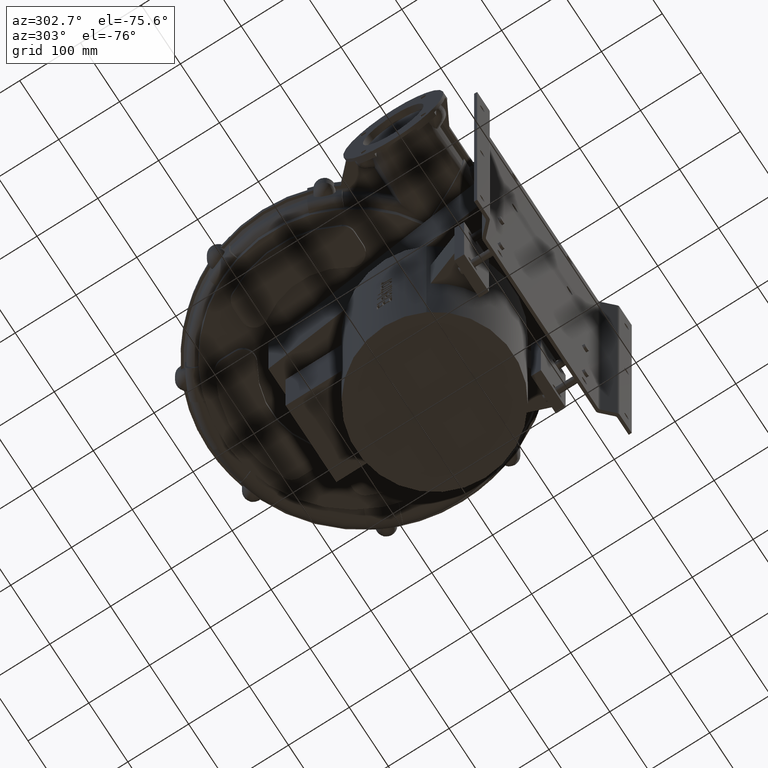
[diagram: clean part render]
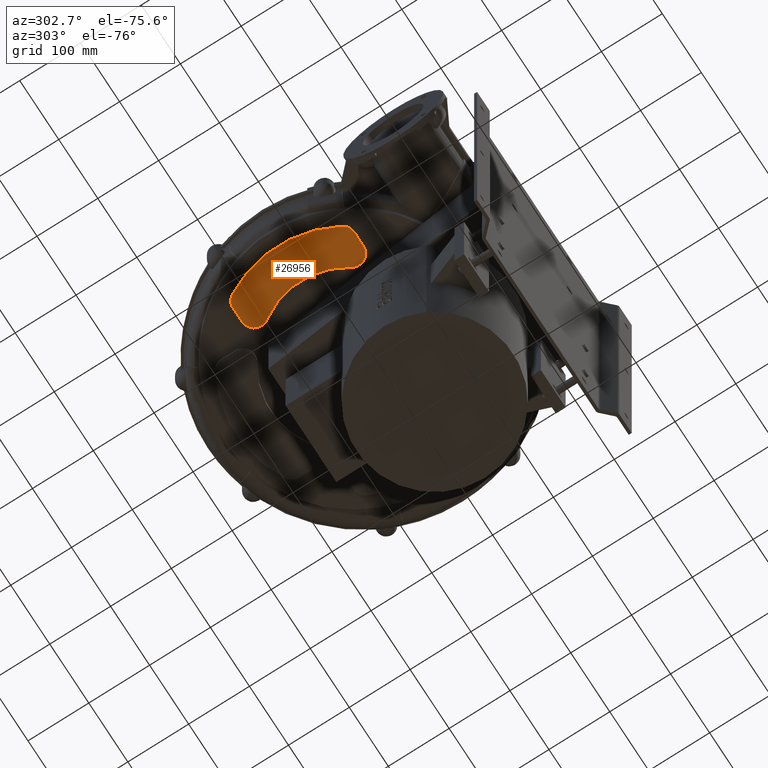
[diagram: same view with one face highlighted and labeled with its STEP entity id]
A machine part, auxiliary view. The second image highlights one B-rep face of the part: STEP entity #26956.
In plain terms, the highlighted planar face has unit normal (0, 0, 1).
Its self-contained STEP definition (entity closure, byte-faithful):
#26686=CARTESIAN_POINT('',(-114.63853008869341,-68.652482269504034,5.329071E-014));
#26687=VERTEX_POINT('',#26686);
#26688=CARTESIAN_POINT('',(-114.63853008869371,68.652482269503096,-3.552714E-013));
#26689=VERTEX_POINT('',#26688);
#26690=CARTESIAN_POINT('',(-14.999999999999938,-2.409184E-013,-3.552714E-014));
#26691=DIRECTION('',(-6.237461E-016,-4.297707E-016,-1.0));
#26692=DIRECTION('',(-0.823458926352838,-0.567375886524825,7.574708E-016));
#26693=AXIS2_PLACEMENT_3D('',#26690,#26691,#26692);
#26694=CIRCLE('',#26693,121.00000000000003);
#26695=EDGE_CURVE('',#26687,#26689,#26694,.T.);
#26728=CARTESIAN_POINT('',(-131.1077086157506,99.999999999999503,-4.707346E-013));
#26729=VERTEX_POINT('',#26728);
#26730=CARTESIAN_POINT('',(-131.10770861575057,79.99999999999946,-4.085621E-013));
#26731=DIRECTION('',(0.0,0.0,1.0));
#26732=DIRECTION('',(0.0,-1.0,0.0));
#26733=AXIS2_PLACEMENT_3D('',#26730,#26731,#26732);
#26734=CIRCLE('',#26733,20.000000000000018);
#26735=EDGE_CURVE('',#26689,#26729,#26734,.T.);
#26761=CARTESIAN_POINT('',(-153.56406460551031,99.99999999999946,-4.973799E-013));
#26762=VERTEX_POINT('',#26761);
#26763=CARTESIAN_POINT('',(-131.1077086157506,99.999999999999503,-4.707346E-013));
#26764=DIRECTION('',(-1.0,0.0,0.0));
#26765=VECTOR('',#26764,22.456355989759714);
#26766=LINE('',#26763,#26765);
#26767=EDGE_CURVE('',#26729,#26762,#26766,.T.);
#26792=CARTESIAN_POINT('',(-170.88457268119902,89.999999999999432,-4.884981E-013));
#26793=VERTEX_POINT('',#26792);
#26794=CARTESIAN_POINT('',(-153.56406460551025,79.99999999999946,-4.352074E-013));
#26795=DIRECTION('',(-2.172582E-015,1.254341E-015,1.0));
#26796=DIRECTION('',(0.866025403784439,-0.499999999999999,2.508682E-015));
#26797=AXIS2_PLACEMENT_3D('',#26794,#26795,#26796);
#26798=CIRCLE('',#26797,19.999999999999996);
#26799=EDGE_CURVE('',#26762,#26793,#26798,.T.);
#26825=CARTESIAN_POINT('',(-170.88457268119873,-90.00000000000054,5.329071E-014));
#26826=VERTEX_POINT('',#26825);
#26827=CARTESIAN_POINT('',(-14.999999999999938,-2.409184E-013,-3.552714E-014));
#26828=DIRECTION('',(4.374918E-016,2.525860E-016,1.0));
#26829=DIRECTION('',(0.866025403784438,0.500000000000002,-5.051720E-016));
#26830=AXIS2_PLACEMENT_3D('',#26827,#26828,#26829);
#26831=CIRCLE('',#26830,180.0);
#26832=EDGE_CURVE('',#26793,#26826,#26831,.T.);
#26858=CARTESIAN_POINT('',(-153.56406460550997,-100.00000000000045,1.065814E-013));
#26859=VERTEX_POINT('',#26858);
#26860=CARTESIAN_POINT('',(-153.56406460551003,-80.000000000000483,4.440892E-014));
#26861=DIRECTION('',(0.0,0.0,1.0));
#26862=DIRECTION('',(0.0,1.0,0.0));
#26863=AXIS2_PLACEMENT_3D('',#26860,#26861,#26862);
#26864=CIRCLE('',#26863,20.0);
#26865=EDGE_CURVE('',#26826,#26859,#26864,.T.);
#26891=CARTESIAN_POINT('',(-131.10770861575017,-100.00000000000045,1.332268E-013));
#26892=VERTEX_POINT('',#26891);
#26893=CARTESIAN_POINT('',(-153.56406460550997,-100.00000000000045,1.065814E-013));
#26894=DIRECTION('',(1.0,0.0,0.0));
#26895=VECTOR('',#26894,22.4563559897598);
#26896=LINE('',#26893,#26895);
#26897=EDGE_CURVE('',#26859,#26892,#26896,.T.);
#26922=CARTESIAN_POINT('',(-131.10770861575017,-80.000000000000497,7.105427E-014));
#26923=DIRECTION('',(6.237461E-016,4.297707E-016,1.0));
#26924=DIRECTION('',(-0.823458926352839,-0.567375886524824,7.574708E-016));
#26925=AXIS2_PLACEMENT_3D('',#26922,#26923,#26924);
#26926=CIRCLE('',#26925,19.999999999999964);
#26927=EDGE_CURVE('',#26892,#26687,#26926,.T.);
#26941=CARTESIAN_POINT('',(-151.39145868950229,-5.473400E-013,-1.953993E-013));
#26942=DIRECTION('',(0.0,0.0,1.0));
#26943=DIRECTION('',(0.0,-1.0,0.0));
#26944=AXIS2_PLACEMENT_3D('',#26941,#26942,#26943);
#26945=PLANE('',#26944);
#26946=ORIENTED_EDGE('',*,*,#26695,.F.);
#26947=ORIENTED_EDGE('',*,*,#26927,.F.);
#26948=ORIENTED_EDGE('',*,*,#26897,.F.);
#26949=ORIENTED_EDGE('',*,*,#26865,.F.);
#26950=ORIENTED_EDGE('',*,*,#26832,.F.);
#26951=ORIENTED_EDGE('',*,*,#26799,.F.);
#26952=ORIENTED_EDGE('',*,*,#26767,.F.);
#26953=ORIENTED_EDGE('',*,*,#26735,.F.);
#26954=EDGE_LOOP('',(#26946,#26947,#26948,#26949,#26950,#26951,#26952,#26953));
#26955=FACE_OUTER_BOUND('',#26954,.T.);
#26956=ADVANCED_FACE('',(#26955),#26945,.F.);